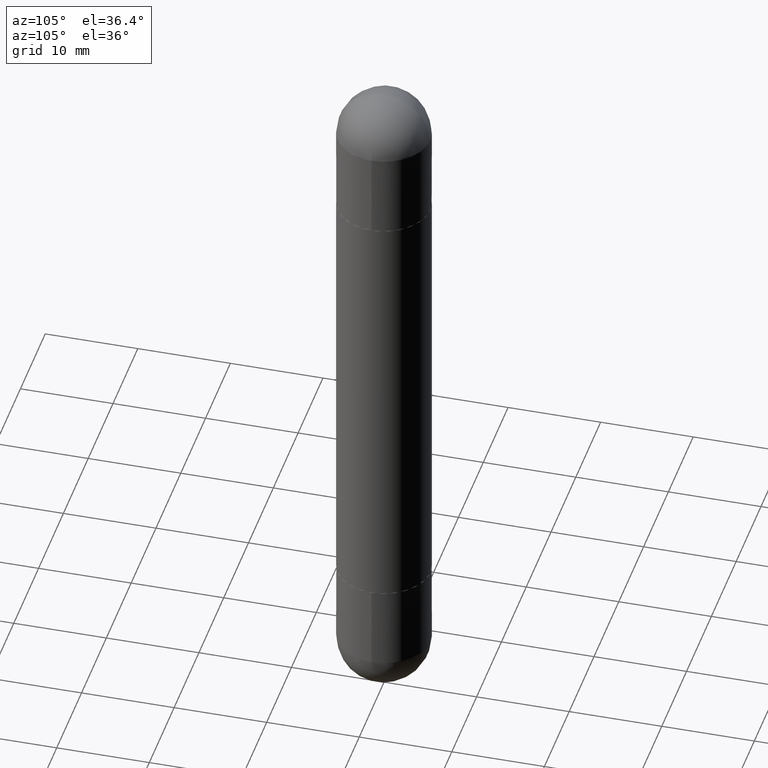
[diagram: clean part render]
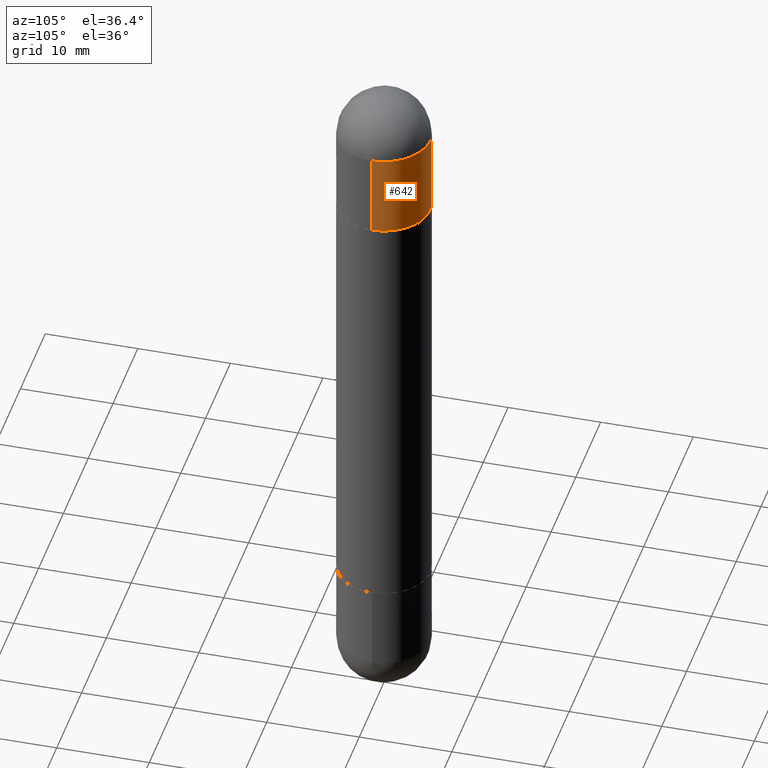
[diagram: same view with one face highlighted and labeled with its STEP entity id]
A machine part, auxiliary view. The second image highlights one B-rep face of the part: STEP entity #642.
In plain terms, the highlighted cylindrical surface (partial cylindrical patch) has radius 5 mm, axis along (-0, 0, -1).
Its self-contained STEP definition (entity closure, byte-faithful):
#100 = AXIS2_PLACEMENT_3D ( 'NONE', #573, #542, #808 ) ;
#144 = CIRCLE ( 'NONE', #100, 0.1968500000000000527 ) ;
#146 = EDGE_CURVE ( 'NONE', #552, #396, #144, .T. ) ;
#158 = CARTESIAN_POINT ( 'NONE',  ( 6.739589756405927064E-29, -9.622347995784766935E-15, -0.1968499999999998307 ) ) ;
#162 = LINE ( 'NONE', #232, #495 ) ;
#163 = EDGE_CURVE ( 'NONE', #270, #624, #162, .T. ) ;
#186 = CARTESIAN_POINT ( 'NONE',  ( 0.1968500000000000527, -1.037834099267777529E-14, -0.1968499999999998307 ) ) ;
#196 = LINE ( 'NONE', #438, #241 ) ;
#209 = EDGE_CURVE ( 'NONE', #624, #437, #785, .T. ) ;
#232 = CARTESIAN_POINT ( 'NONE',  ( 0.1968500000000000527, -1.374596203102542003E-15, -2.952799999999999869 ) ) ;
#236 = EDGE_CURVE ( 'NONE', #270, #552, #480, .T. ) ;
#241 = VECTOR ( 'NONE', #483, 39.37007874015748143 ) ;
#270 = VERTEX_POINT ( 'NONE', #186 ) ;
#291 = DIRECTION ( 'NONE',  ( -2.445468806185136597E-29, 3.491481338843145583E-15, -1.000000000000000000 ) ) ;
#295 = CYLINDRICAL_SURFACE ( 'NONE', #755, 0.1968500000000000527 ) ;
#325 = CARTESIAN_POINT ( 'NONE',  ( -0.1968500000000000527, -7.653255758713905881E-15, -0.1968499999999998307 ) ) ;
#362 = DIRECTION ( 'NONE',  ( 2.445468806185136597E-29, -3.491481338843145583E-15, 1.000000000000000000 ) ) ;
#396 = VERTEX_POINT ( 'NONE', #325 ) ;
#403 = DIRECTION ( 'NONE',  ( 2.445468806185136597E-29, -3.491481338843145583E-15, 1.000000000000000000 ) ) ;
#405 = CARTESIAN_POINT ( 'NONE',  ( 0.1968500000000000250, -9.759737786468237294E-15, -0.5512000000000001343 ) ) ;
#413 = DIRECTION ( 'NONE',  ( 1.000000000000000000, -6.982962677686266711E-15, 0.000000000000000000 ) ) ;
#419 = AXIS2_PLACEMENT_3D ( 'NONE', #677, #362, #553 ) ;
#423 = EDGE_LOOP ( 'NONE', ( #532, #499, #656, #655, #779 ) ) ;
#432 = DIRECTION ( 'NONE',  ( -2.445468806185136877E-29, 3.491481338843145188E-15, -1.000000000000000000 ) ) ;
#437 = VERTEX_POINT ( 'NONE', #778 ) ;
#438 = CARTESIAN_POINT ( 'NONE',  ( -0.1968500000000000527, 1.350489030861326415E-15, -2.952799999999999869 ) ) ;
#480 = CIRCLE ( 'NONE', #674, 0.1968500000000000527 ) ;
#483 = DIRECTION ( 'NONE',  ( -2.445468806185136877E-29, 3.491481338843145188E-15, -1.000000000000000000 ) ) ;
#495 = VECTOR ( 'NONE', #432, 39.37007874015748143 ) ;
#499 = ORIENTED_EDGE ( 'NONE', *, *, #146, .F. ) ;
#530 = CARTESIAN_POINT ( 'NONE',  ( 1.374596203102607873E-15, 0.1968499999999902550, -0.1968499999999991645 ) ) ;
#532 = ORIENTED_EDGE ( 'NONE', *, *, #767, .F. ) ;
#536 = CARTESIAN_POINT ( 'NONE',  ( 0.000000000000000000, 0.000000000000000000, -2.952799999999999869 ) ) ;
#542 = DIRECTION ( 'NONE',  ( 2.445468806185136597E-29, -3.491481338843145583E-15, 1.000000000000000000 ) ) ;
#552 = VERTEX_POINT ( 'NONE', #530 ) ;
#553 = DIRECTION ( 'NONE',  ( 1.000000000000000000, -6.982962677686262766E-15, 0.000000000000000000 ) ) ;
#573 = CARTESIAN_POINT ( 'NONE',  ( 6.739589756405927064E-29, -9.622347995784766935E-15, -0.1968499999999998307 ) ) ;
#624 = VERTEX_POINT ( 'NONE', #405 ) ;
#642 = ADVANCED_FACE ( 'NONE', ( #663 ), #295, .T. ) ;
#655 = ORIENTED_EDGE ( 'NONE', *, *, #163, .T. ) ;
#656 = ORIENTED_EDGE ( 'NONE', *, *, #236, .F. ) ;
#663 = FACE_OUTER_BOUND ( 'NONE', #423, .T. ) ;
#674 = AXIS2_PLACEMENT_3D ( 'NONE', #158, #403, #776 ) ;
#677 = CARTESIAN_POINT ( 'NONE',  ( 5.873037884934223228E-29, -8.385141583365697263E-15, -0.5512000000000001343 ) ) ;
#755 = AXIS2_PLACEMENT_3D ( 'NONE', #536, #291, #413 ) ;
#767 = EDGE_CURVE ( 'NONE', #396, #437, #196, .T. ) ;
#776 = DIRECTION ( 'NONE',  ( 1.000000000000000000, -6.982962677686266711E-15, 0.000000000000000000 ) ) ;
#778 = CARTESIAN_POINT ( 'NONE',  ( -0.1968500000000000250, -7.653255758713905881E-15, -0.5512000000000001343 ) ) ;
#779 = ORIENTED_EDGE ( 'NONE', *, *, #209, .T. ) ;
#785 = CIRCLE ( 'NONE', #419, 0.1968500000000000250 ) ;
#808 = DIRECTION ( 'NONE',  ( 1.000000000000000000, -6.982962677686266711E-15, 0.000000000000000000 ) ) ;